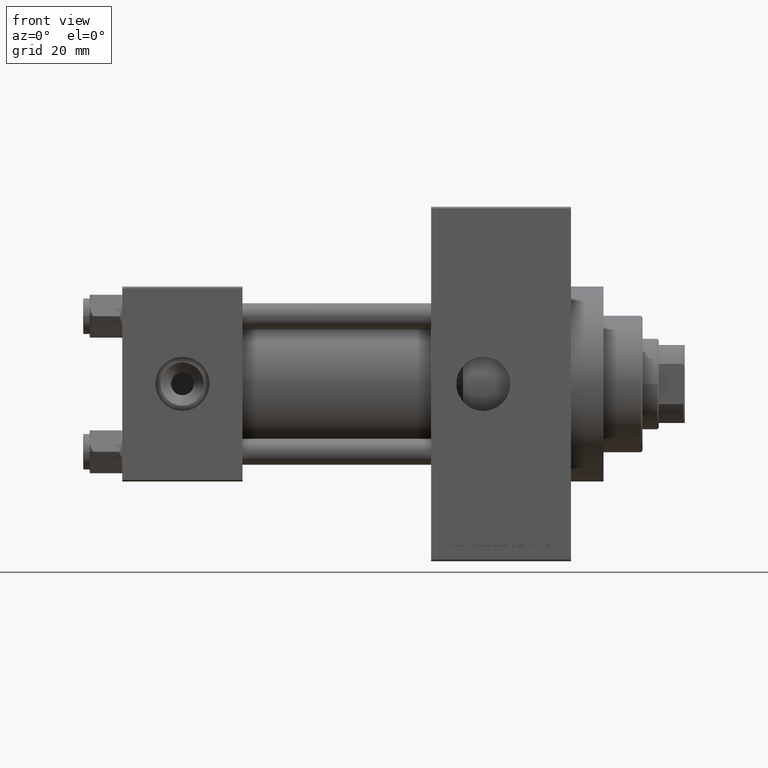
[diagram: clean part render]
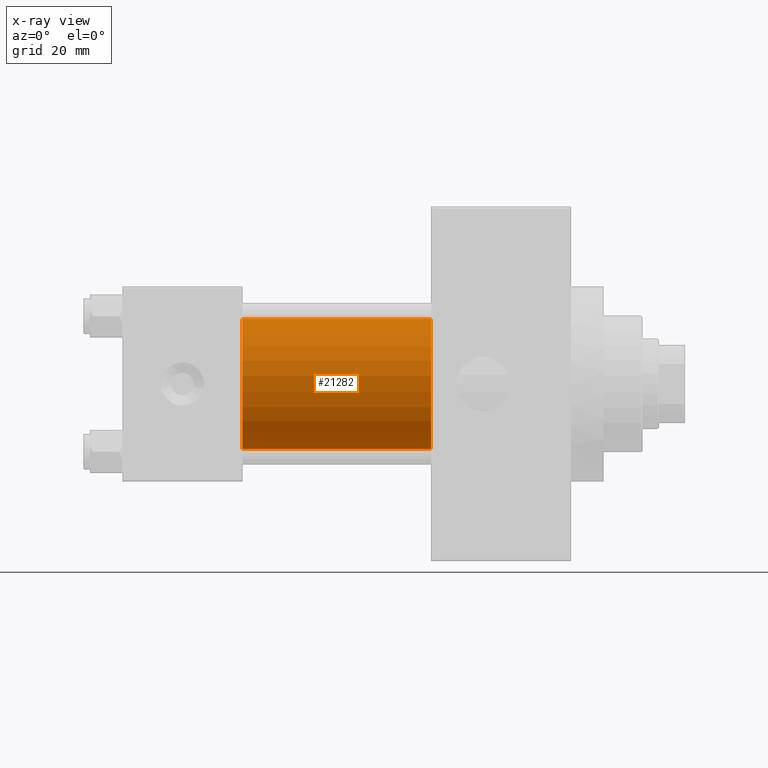
[diagram: x-ray — body ghosted, one internal face saturated and labeled with its STEP entity id]
A machine part, front view, then the same camera in x-ray: the body is ghosted and one INTERNAL B-rep face — a face not visible from any outside direction — is saturated and labeled: STEP entity #21282.
In plain terms, the highlighted cylindrical surface (partial cylindrical patch) has radius 20 mm, axis along (-1, -0, -0).
Its self-contained STEP definition (entity closure, byte-faithful):
#695 = ORIENTED_EDGE ( 'NONE', *, *, #17508, .T. ) ;
#995 = LINE ( 'NONE', #46617, #35389 ) ;
#1220 = DIRECTION ( 'NONE',  ( -1.000000000000000000, -0.000000000000000000, -0.000000000000000000 ) ) ;
#1990 = CIRCLE ( 'NONE', #28264, 20.00000000000000000 ) ;
#2367 = VERTEX_POINT ( 'NONE', #24741 ) ;
#2875 = DIRECTION ( 'NONE',  ( -1.000000000000000000, -0.000000000000000000, -0.000000000000000000 ) ) ;
#4421 = VERTEX_POINT ( 'NONE', #7204 ) ;
#6467 = ORIENTED_EDGE ( 'NONE', *, *, #12163, .T. ) ;
#7204 = CARTESIAN_POINT ( 'NONE',  ( 95.00000000000000000, -2.602085213965210642E-15, 20.00000000000000000 ) ) ;
#7836 = VERTEX_POINT ( 'NONE', #28994 ) ;
#9424 = EDGE_CURVE ( 'NONE', #4421, #41485, #995, .T. ) ;
#11954 = CARTESIAN_POINT ( 'NONE',  ( 95.00000000000000000, -1.527916156705046464E-16, -20.00000000000000000 ) ) ;
#12163 = EDGE_CURVE ( 'NONE', #4421, #2367, #38554, .T. ) ;
#12313 = AXIS2_PLACEMENT_3D ( 'NONE', #48450, #47949, #29254 ) ;
#12473 = DIRECTION ( 'NONE',  ( -1.000000000000000000, -0.000000000000000000, -0.000000000000000000 ) ) ;
#13390 = EDGE_CURVE ( 'NONE', #41485, #7836, #1990, .T. ) ;
#14095 = CYLINDRICAL_SURFACE ( 'NONE', #29740, 20.00000000000000000 ) ;
#14126 = CARTESIAN_POINT ( 'NONE',  ( 37.00000000000000000, -2.602085213965210642E-15, 20.00000000000000000 ) ) ;
#16180 = LINE ( 'NONE', #11954, #29645 ) ;
#17508 = EDGE_CURVE ( 'NONE', #2367, #7836, #16180, .T. ) ;
#21282 = ADVANCED_FACE ( 'NONE', ( #25304 ), #14095, .F. ) ;
#24224 = ORIENTED_EDGE ( 'NONE', *, *, #13390, .F. ) ;
#24741 = CARTESIAN_POINT ( 'NONE',  ( 95.00000000000000000, -1.527916156705046464E-16, -20.00000000000000000 ) ) ;
#25304 = FACE_OUTER_BOUND ( 'NONE', #41908, .T. ) ;
#28027 = ORIENTED_EDGE ( 'NONE', *, *, #9424, .F. ) ;
#28264 = AXIS2_PLACEMENT_3D ( 'NONE', #45507, #29581, #48538 ) ;
#28994 = CARTESIAN_POINT ( 'NONE',  ( 37.00000000000000000, -1.527916156705046464E-16, -20.00000000000000000 ) ) ;
#29254 = DIRECTION ( 'NONE',  ( 0.000000000000000000, 0.000000000000000000, -1.000000000000000000 ) ) ;
#29281 = CARTESIAN_POINT ( 'NONE',  ( 95.00000000000000000, -2.602085213965210642E-15, 0.000000000000000000 ) ) ;
#29581 = DIRECTION ( 'NONE',  ( 1.000000000000000000, 0.000000000000000000, 0.000000000000000000 ) ) ;
#29645 = VECTOR ( 'NONE', #1220, 1000.000000000000000 ) ;
#29740 = AXIS2_PLACEMENT_3D ( 'NONE', #29281, #2875, #44484 ) ;
#35389 = VECTOR ( 'NONE', #12473, 1000.000000000000000 ) ;
#38554 = CIRCLE ( 'NONE', #12313, 20.00000000000000000 ) ;
#41485 = VERTEX_POINT ( 'NONE', #14126 ) ;
#41908 = EDGE_LOOP ( 'NONE', ( #6467, #695, #24224, #28027 ) ) ;
#44484 = DIRECTION ( 'NONE',  ( 0.000000000000000000, 0.000000000000000000, 1.000000000000000000 ) ) ;
#45507 = CARTESIAN_POINT ( 'NONE',  ( 37.00000000000000000, -2.602085213965210642E-15, 0.000000000000000000 ) ) ;
#46617 = CARTESIAN_POINT ( 'NONE',  ( 95.00000000000000000, -2.602085213965210642E-15, 20.00000000000000000 ) ) ;
#47949 = DIRECTION ( 'NONE',  ( 1.000000000000000000, 0.000000000000000000, 0.000000000000000000 ) ) ;
#48450 = CARTESIAN_POINT ( 'NONE',  ( 95.00000000000000000, -2.602085213965210642E-15, 0.000000000000000000 ) ) ;
#48538 = DIRECTION ( 'NONE',  ( 0.000000000000000000, 0.000000000000000000, -1.000000000000000000 ) ) ;